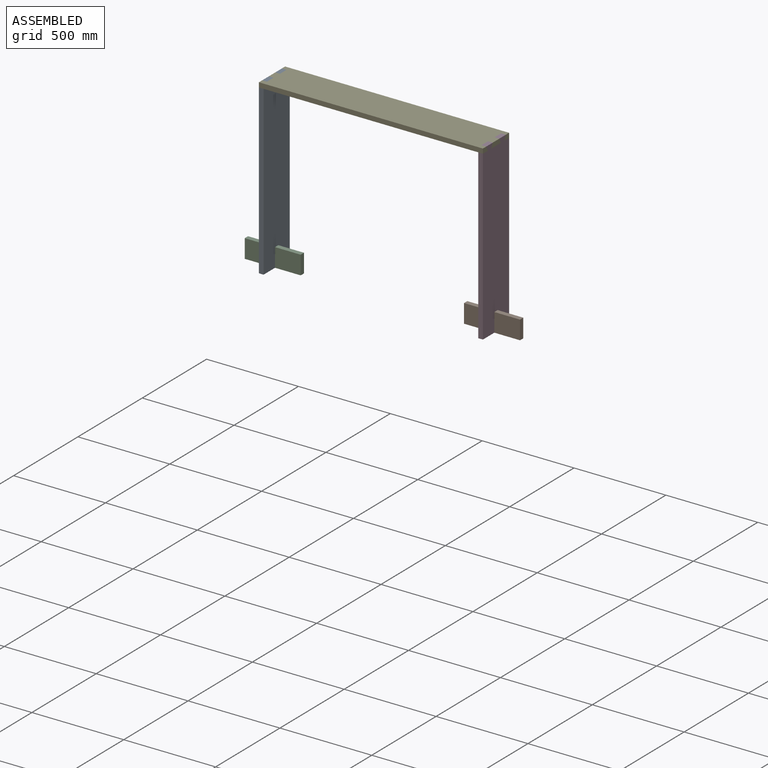
[diagram: assembled view]
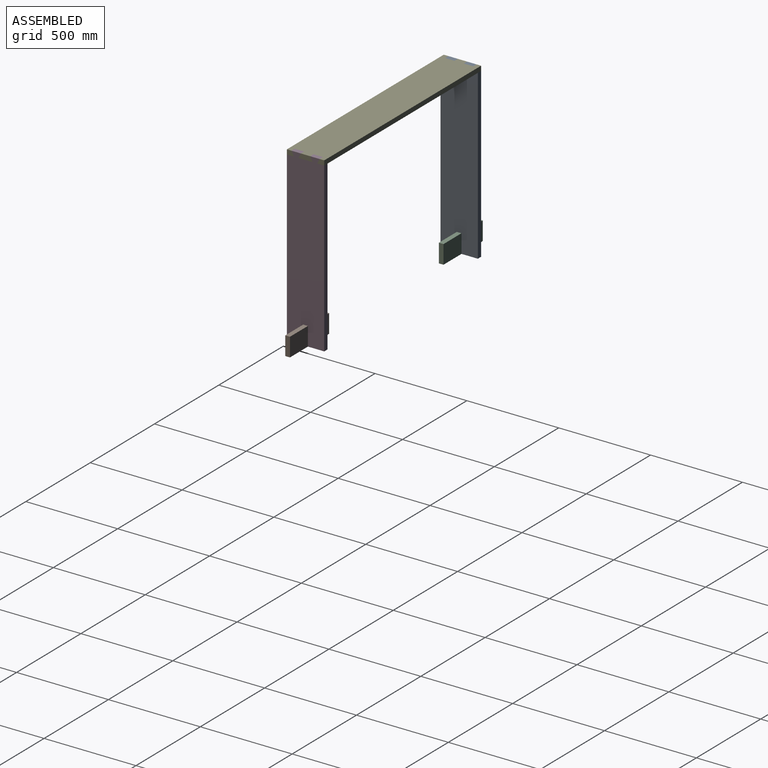
[diagram: assembled view, second angle]
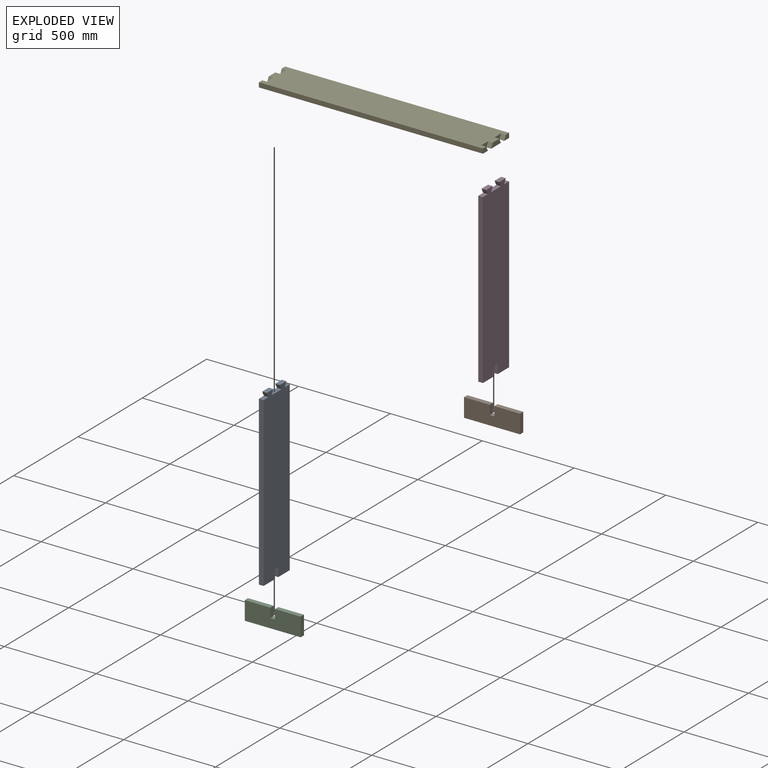
[diagram: exploded view]
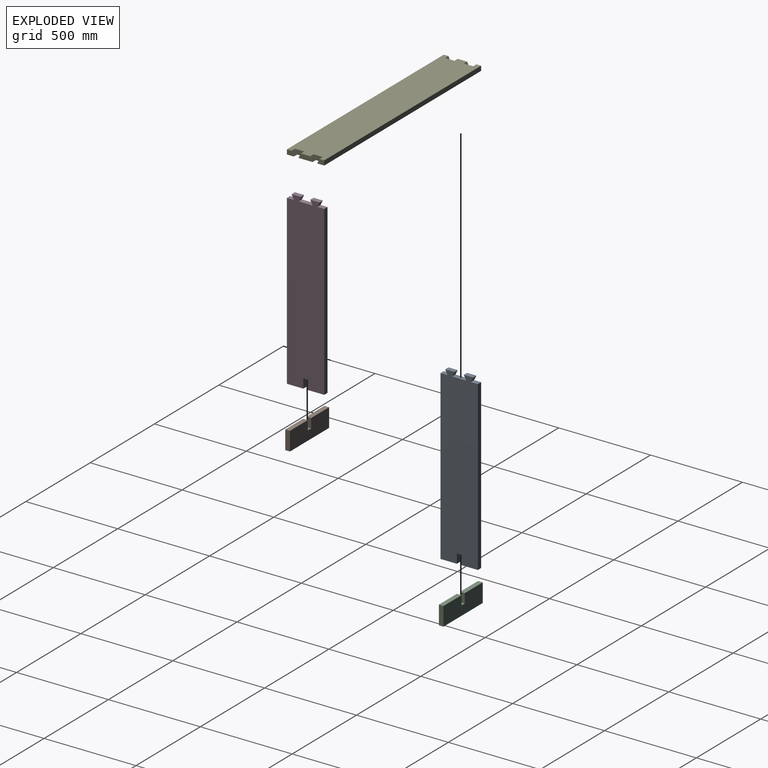
[diagram: exploded view, second angle]
ASSEMBLY  parts=5 mates=8
PART A: 18 faces, bbox 203.2x939.8x25.4 mm
  f0: plane 88.9x25.4mm, normal (0,1,0), area 2258.1mm2, adj f1,f6,f8,f15
  f1: plane 939.8x203.2mm, normal (0,0,1), area 186451.2mm2, adj f0,f2,f3,f4,f5,f6,f7,f9
  f2: plane 38.1x25.4mm, normal (0,-1,0), area 967.7mm2, adj f1,f6,f8,f13
  f3: plane 76.2x25.4mm, normal (0,-1,0), area 1935.5mm2, adj f1,f8,f10,f14
  f4: plane 914.4x25.4mm, normal (-1,0,0), area 23225.8mm2, adj f1,f5,f7,f8
  f5: plane 38.1x25.4mm, normal (0,-1,0), area 967.7mm2, adj f1,f4,f8,f11
  f6: plane 914.4x25.4mm, normal (1,0,0), area 23225.8mm2, adj f0,f1,f2,f8
  f7: plane 88.9x25.4mm, normal (0,1,0), area 2258.1mm2, adj f1,f4,f8,f16
  f8: plane 939.8x203.2mm, normal (0,0,-1), area 186451.2mm2, adj f0,f2,f3,f4,f5,f6,f7,f9
  f9: plane 50.8x25.4mm, normal (0,-1,0), area 1290.3mm2, adj f1,f8,f10,f11
  f10: plane 25.4x25.4mm, normal (0.89,0.45,0), area 721.3mm2, adj f1,f3,f8,f9
  f11: plane 25.4x25.4mm, normal (-0.89,0.45,0), area 721.3mm2, adj f1,f5,f8,f9
  f12: plane 50.8x25.4mm, normal (0,-1,0), area 1290.3mm2, adj f1,f8,f13,f14
  f13: plane 25.4x25.4mm, normal (0.89,0.45,0), area 721.3mm2, adj f1,f2,f8,f12
  f14: plane 25.4x25.4mm, normal (-0.89,0.45,0), area 721.3mm2, adj f1,f3,f8,f12
  f15: plane 50.8x25.4mm, normal (-1,0,0), area 1290.3mm2, adj f0,f1,f8,f17
  f16: plane 50.8x25.4mm, normal (1,0,0), area 1290.3mm2, adj f1,f7,f8,f17
  f17: plane 25.4x25.4mm, normal (0,1,0), area 645.2mm2, adj f1,f8,f15,f16
PART B: 10 faces, bbox 25.4x304.8x101.6 mm
  f0: plane 139.7x25.4mm, normal (0,0,1), area 3548.4mm2, adj f1,f7,f8,f9
  f1: plane 101.6x25.4mm, normal (0,-1,0), area 2580.6mm2, adj f0,f2,f8,f9
  f2: plane 304.8x25.4mm, normal (0,0,-1), area 7741.9mm2, adj f1,f3,f8,f9
  f3: plane 101.6x25.4mm, normal (0,1,0), area 2580.6mm2, adj f2,f4,f8,f9
  f4: plane 139.7x25.4mm, normal (0,0,1), area 3548.4mm2, adj f3,f5,f8,f9
  f5: plane 50.8x25.4mm, normal (0,-1,0), area 1290.3mm2, adj f4,f6,f8,f9
  f6: plane 25.4x25.4mm, normal (0,0,1), area 645.2mm2, adj f5,f7,f8,f9
  f7: plane 50.8x25.4mm, normal (0,1,0), area 1290.3mm2, adj f0,f6,f8,f9
  f8: plane 304.8x101.6mm, normal (1,0,0), area 29677.4mm2, adj f0,f1,f2,f3,f4,f5,f6,f7
  f9: plane 304.8x101.6mm, normal (-1,0,0), area 29677.4mm2, adj f0,f1,f2,f3,f4,f5,f6,f7
PART C: same geometry as B
PART D: same geometry as A
PART E: 22 faces, bbox 1219.2x203.2x25.4 mm
  f0: plane 38.1x25.4mm, normal (1,0,0), area 806.5mm2, adj f2,f5,f9,f19
  f1: plane 38.1x25.4mm, normal (1,0,0), area 806.5mm2, adj f2,f7,f9,f16
  f2: plane 1219.2x203.2mm, normal (0,0,1), area 242580.2mm2, adj f0,f1,f3,f4,f5,f6,f7,f8
  f3: plane 38.1x25.4mm, normal (-1,0,0), area 806.5mm2, adj f2,f5,f9,f13
  f4: plane 38.1x25.4mm, normal (-1,0,0), area 806.5mm2, adj f2,f7,f9,f10
  f5: plane 1219.2x25.4mm, normal (0,1,0), area 30967.7mm2, adj f0,f2,f3,f9
  f6: plane 76.2x25.4mm, normal (-1,0,0), area 1612.9mm2, adj f2,f9,f11,f14
  f7: plane 1219.2x25.4mm, normal (0,-1,0), area 30967.7mm2, adj f1,f2,f4,f9
  f8: plane 76.2x25.4mm, normal (1,0,0), area 1612.9mm2, adj f2,f9,f17,f20
  f9: plane 1219.2x203.2mm, normal (0,0,-1), area 245160.8mm2, adj f0,f1,f3,f4,f5,f6,f7,f8
  f10: plane 25.4x25.4mm, normal (0,0.89,0.45), area 721.3mm2, adj f2,f4,f9,f12
  f11: plane 25.4x25.4mm, normal (0,-0.89,0.45), area 721.3mm2, adj f2,f6,f9,f12
  f12: plane 50.8x25.4mm, normal (-1,0,0), area 967.7mm2, adj f2,f9,f10,f11
  f13: plane 25.4x25.4mm, normal (0,-0.89,0.45), area 721.3mm2, adj f2,f3,f9,f15
  f14: plane 25.4x25.4mm, normal (0,0.89,0.45), area 721.3mm2, adj f2,f6,f9,f15
  f15: plane 50.8x25.4mm, normal (-1,0,0), area 967.7mm2, adj f2,f9,f13,f14
  f16: plane 25.4x25.4mm, normal (0,0.89,0.45), area 721.3mm2, adj f1,f2,f9,f18
  f17: plane 25.4x25.4mm, normal (0,-0.89,0.45), area 721.3mm2, adj f2,f8,f9,f18
  f18: plane 50.8x25.4mm, normal (1,0,0), area 967.7mm2, adj f2,f9,f16,f17
  f19: plane 25.4x25.4mm, normal (0,-0.89,0.45), area 721.3mm2, adj f0,f2,f9,f21
  f20: plane 25.4x25.4mm, normal (0,0.89,0.45), area 721.3mm2, adj f2,f8,f9,f21
  f21: plane 50.8x25.4mm, normal (1,0,0), area 967.7mm2, adj f2,f9,f19,f20
PLACE A rot(axis=(-0.58,-0.58,0.58),120deg) t=(-79.81,-197,-498.5)mm
PLACE B rot(axis=(0,0,-1),90deg) t=(1101.29,-184.3,-904.9)mm
PLACE C rot(axis=(0,0,-1),90deg) t=(-92.51,-184.3,-904.9)mm
PLACE D rot(axis=(-0.58,0.58,-0.58),120deg) t=(1088.59,-197,-498.5)mm
PLACE E rot(axis=(0.1,-0.7,-0.7),0deg) t=(504.39,-197,-41.3)mm fixed
MATE planar A.f12 <-> E.f2  axis (0,0,1) through (-92.51,-146.2,-15.9)mm
MATE fastened A.f17 <-> C.f6  axis (0,0,-1) through (-92.51,-197,-904.9)mm
MATE planar E.f11 <-> A.f10  axis (0,-0.89,0.45) through (-92.51,-228.75,-28.6)mm
MATE planar D.f8 <-> E.f18  axis (-1,0,0) through (1088.59,-197,-490.62)mm
MATE planar E.f2 <-> D.f12  axis (0,0,1) through (504.39,-197,-15.9)mm
MATE planar E.f20 <-> D.f10  axis (0,0.89,0.45) through (1101.29,-165.25,-28.6)mm
MATE planar E.f15 <-> A.f8  axis (-1,0,0) through (-79.81,-146.2,-27.19)mm
MATE fastened B.f6 <-> D.f17  axis (0,0,1) through (1101.29,-197,-904.9)mm
